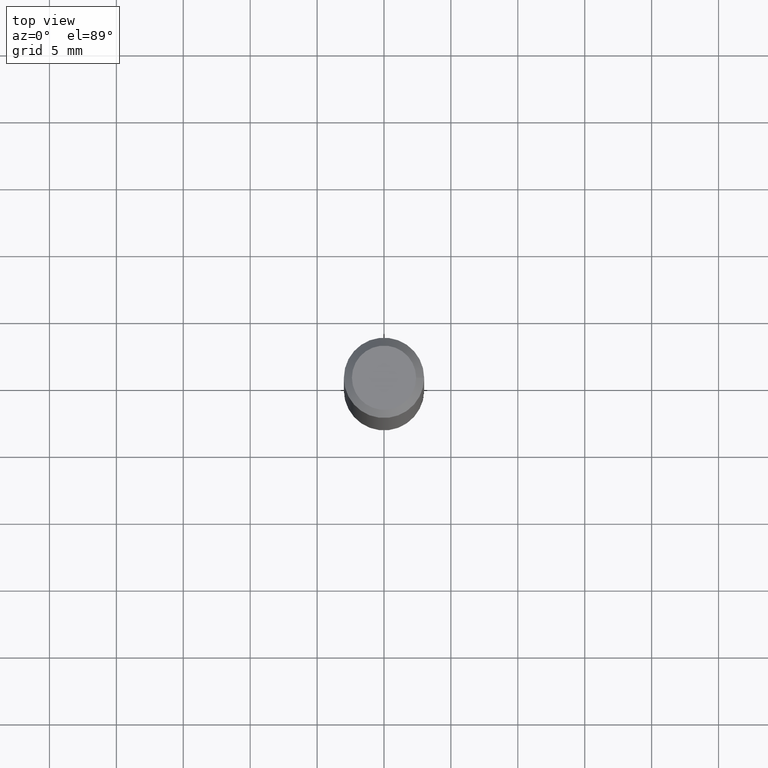
[diagram: clean part render]
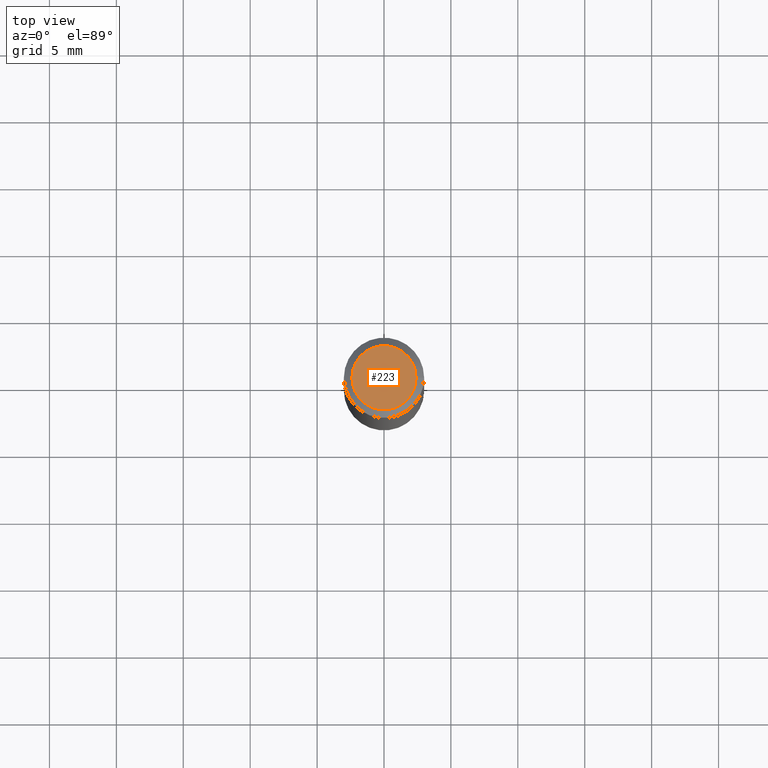
[diagram: same view with one face highlighted and labeled with its STEP entity id]
A machine part, top view. The second image highlights one B-rep face of the part: STEP entity #223.
In plain terms, the highlighted planar face has unit normal (0, 0, 1).
Its self-contained STEP definition (entity closure, byte-faithful):
#14 = CARTESIAN_POINT ( 'NONE',  ( 0.0000000000000000000, 0.0000000000000000000, 0.0000000000000000000 ) ) ;
#29 = CARTESIAN_POINT ( 'NONE',  ( -7.712954277769347036E-31, 0.0000000000000000000, -1.104538951986058046E-16 ) ) ;
#36 = ORIENTED_EDGE ( 'NONE', *, *, #135, .T. ) ;
#53 = EDGE_LOOP ( 'NONE', ( #36 ) ) ;
#54 = AXIS2_PLACEMENT_3D ( 'NONE', #29, #123, #101 ) ;
#61 = VERTEX_POINT ( 'NONE', #158 ) ;
#65 = AXIS2_PLACEMENT_3D ( 'NONE', #14, #188, #103 ) ;
#82 = FACE_OUTER_BOUND ( 'NONE', #53, .T. ) ;
#101 = DIRECTION ( 'NONE',  ( 1.000000000000000000, 0.0000000000000000000, -6.982962677686266711E-15 ) ) ;
#103 = DIRECTION ( 'NONE',  ( 1.000000000000000000, 0.0000000000000000000, -6.982962677686266711E-15 ) ) ;
#123 = DIRECTION ( 'NONE',  ( 6.982962677686266711E-15, 0.0000000000000000000, 1.000000000000000000 ) ) ;
#135 = EDGE_CURVE ( 'NONE', #61, #61, #178, .T. ) ;
#158 = CARTESIAN_POINT ( 'NONE',  ( 2.399999999999998135, 0.0000000000000000000, -1.675911042644702748E-14 ) ) ;
#178 = CIRCLE ( 'NONE', #65, 2.399999999999998135 ) ;
#187 = PLANE ( 'NONE',  #54 ) ;
#188 = DIRECTION ( 'NONE',  ( 6.982962677686266711E-15, 0.0000000000000000000, 1.000000000000000000 ) ) ;
#223 = ADVANCED_FACE ( 'NONE', ( #82 ), #187, .T. ) ;